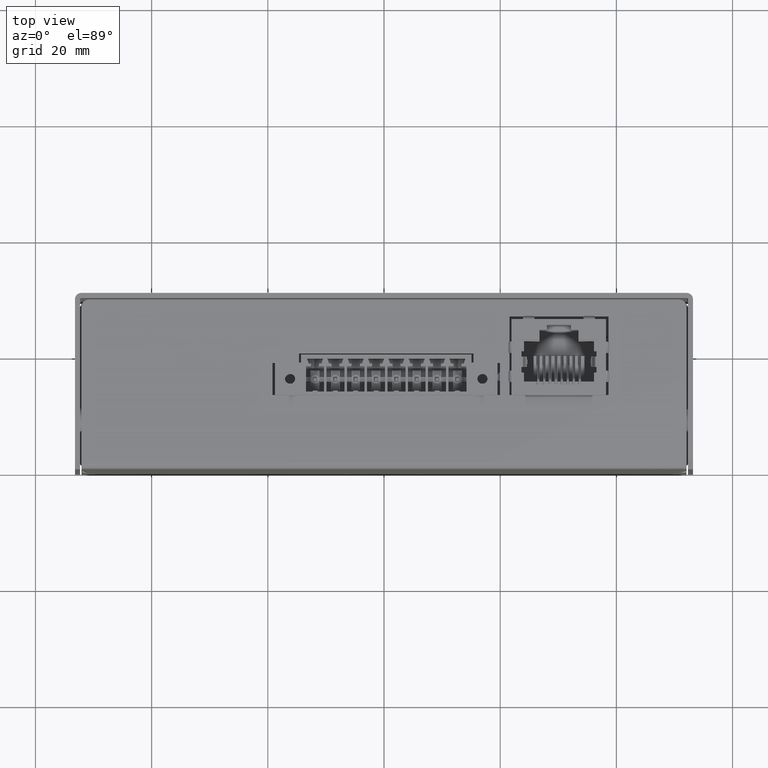
[diagram: clean part render]
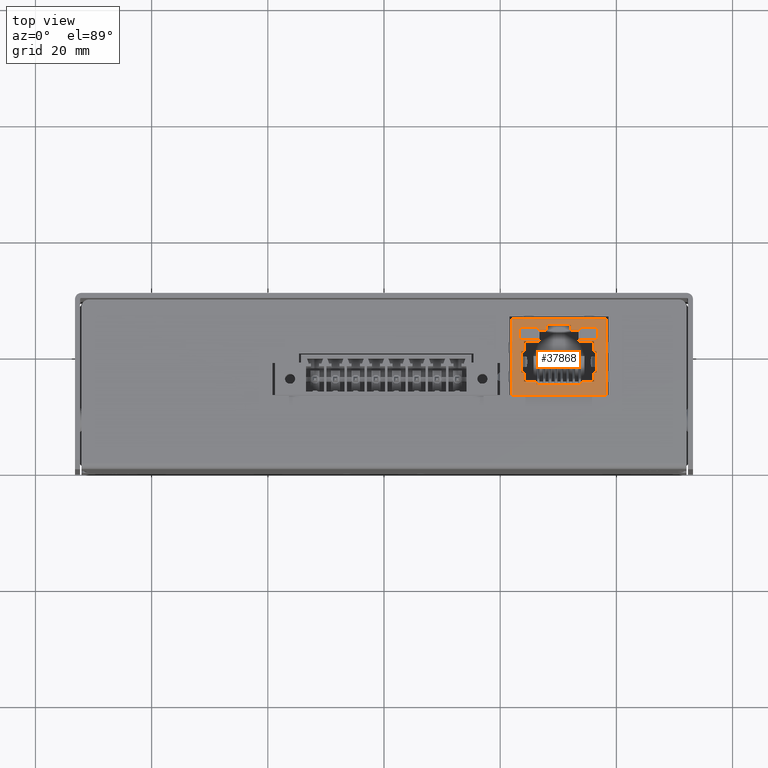
[diagram: same view with one face highlighted and labeled with its STEP entity id]
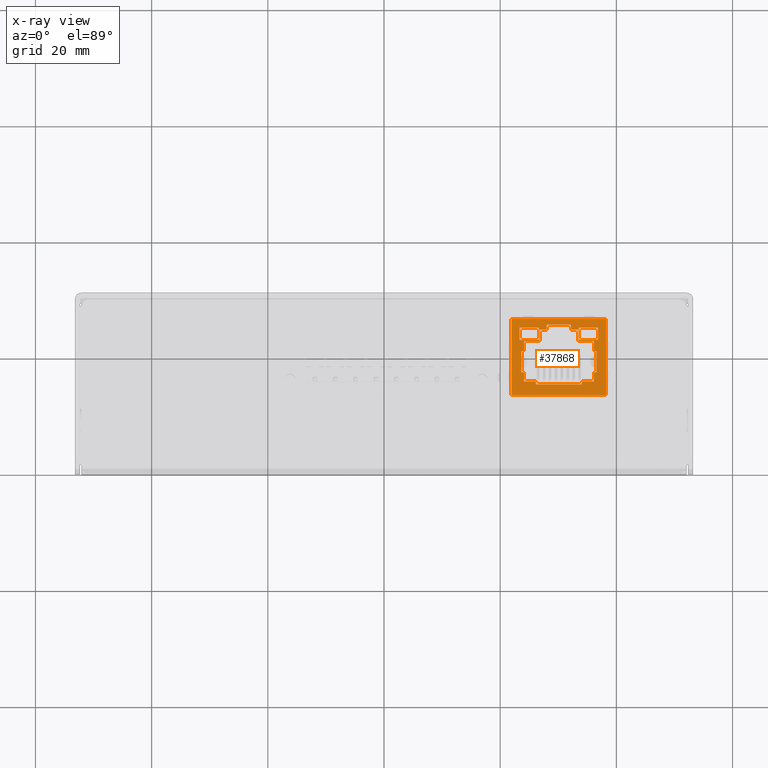
[diagram: x-ray of the same camera — body ghosted, the highlighted face saturated]
A machine part, top view. The second image highlights one B-rep face of the part: STEP entity #37868.
The next image is the same camera in x-ray: the body ghosted, the highlighted face saturated — about 0% of this face is hidden behind the body in this view.
In plain terms, the highlighted planar face has unit normal (0, 0, -1).
Its self-contained STEP definition (entity closure, byte-faithful):
#2629 = VECTOR ( 'NONE', #35158, 1000.000000000000000 ) ;
#2660 = VECTOR ( 'NONE', #35184, 1000.000000000000000 ) ;
#3118 = VECTOR ( 'NONE', #6765, 1000.000000000000000 ) ;
#3159 = VECTOR ( 'NONE', #6862, 1000.000000000000000 ) ;
#5052 = EDGE_LOOP ( 'NONE', ( #21451, #21020, #27258, #21474 ) ) ;
#5267 = EDGE_LOOP ( 'NONE', ( #31688, #31593, #31269, #31288 ) ) ;
#5320 = EDGE_LOOP ( 'NONE', ( #31165, #31755, #31402, #31813, #31379, #31927, #31931, #31934, #31210, #31201, #31162, #31204, #31208, #31900, #31197, #31582 ) ) ;
#5321 = EDGE_LOOP ( 'NONE', ( #21211, #21045, #21457, #21383, #21185, #21398, #21454, #21360, #21029, #21481, #21118, #21272, #21449, #21434, #21440, #21410, #23133, #23124, #23146, #23140, #23141, #23143, #23144, #23142, #23145, #31751, #23131, #23132, #31188, #31879, #31787, #31412 ) ) ;
#6760 = LINE ( 'NONE', #6763, #3118 ) ;
#6763 = CARTESIAN_POINT ( 'NONE',  ( -8.130000000000000800, 13.10000000000000000, 7.874999999999998200 ) ) ;
#6765 = DIRECTION ( 'NONE',  ( -0.0000000000000000000, -1.000000000000000000, -0.0000000000000000000 ) ) ;
#6859 = LINE ( 'NONE', #6861, #3159 ) ;
#6861 = CARTESIAN_POINT ( 'NONE',  ( -8.130000000000000800, 13.10000000000000000, 7.874999999999998200 ) ) ;
#6862 = DIRECTION ( 'NONE',  ( 1.000000000000000000, 0.0000000000000000000, 0.0000000000000000000 ) ) ;
#7050 = LINE ( 'NONE', #7098, #25671 ) ;
#7098 = CARTESIAN_POINT ( 'NONE',  ( 3.449999999999999700, 11.60000000000000300, 7.874999999999998200 ) ) ;
#7100 = DIRECTION ( 'NONE',  ( -1.000000000000000000, -0.0000000000000000000, -0.0000000000000000000 ) ) ;
#7601 = LINE ( 'NONE', #7603, #25349 ) ;
#7603 = CARTESIAN_POINT ( 'NONE',  ( 6.000000000000002700, 7.599999999999998800, 7.874999999999998200 ) ) ;
#7604 = DIRECTION ( 'NONE',  ( 0.0000000000000000000, 1.000000000000000000, 0.0000000000000000000 ) ) ;
#7695 = LINE ( 'NONE', #7697, #25607 ) ;
#7697 = CARTESIAN_POINT ( 'NONE',  ( 8.130000000000002600, 13.10000000000000000, 7.874999999999998200 ) ) ;
#7698 = DIRECTION ( 'NONE',  ( -0.0000000000000000000, -1.000000000000000000, -0.0000000000000000000 ) ) ;
#8303 = LINE ( 'NONE', #8306, #25576 ) ;
#8306 = CARTESIAN_POINT ( 'NONE',  ( -8.130000000000000800, 13.10000000000000000, 7.874999999999998200 ) ) ;
#8309 = DIRECTION ( 'NONE',  ( -0.0000000000000000000, -1.000000000000000000, -0.0000000000000000000 ) ) ;
#10077 = VECTOR ( 'NONE', #32862, 1000.000000000000000 ) ;
#10083 = VECTOR ( 'NONE', #32850, 1000.000000000000000 ) ;
#10108 = VECTOR ( 'NONE', #27692, 1000.000000000000000 ) ;
#10225 = VECTOR ( 'NONE', #32831, 1000.000000000000000 ) ;
#10379 = VECTOR ( 'NONE', #27689, 1000.000000000000000 ) ;
#10441 = VECTOR ( 'NONE', #27686, 1000.000000000000000 ) ;
#10454 = VECTOR ( 'NONE', #52551, 1000.000000000000000 ) ;
#10538 = VECTOR ( 'NONE', #27683, 1000.000000000000000 ) ;
#10662 = VECTOR ( 'NONE', #52556, 1000.000000000000000 ) ;
#10663 = VECTOR ( 'NONE', #27680, 1000.000000000000000 ) ;
#10688 = VECTOR ( 'NONE', #27701, 1000.000000000000000 ) ;
#10695 = VECTOR ( 'NONE', #27677, 1000.000000000000000 ) ;
#10704 = VECTOR ( 'NONE', #27824, 1000.000000000000000 ) ;
#10736 = VECTOR ( 'NONE', #52572, 1000.000000000000000 ) ;
#10741 = VECTOR ( 'NONE', #32856, 1000.000000000000000 ) ;
#10742 = VECTOR ( 'NONE', #52562, 1000.000000000000000 ) ;
#10809 = VECTOR ( 'NONE', #32837, 1000.000000000000000 ) ;
#10822 = VECTOR ( 'NONE', #27697, 1000.000000000000000 ) ;
#10852 = VECTOR ( 'NONE', #32819, 1000.000000000000000 ) ;
#10857 = VECTOR ( 'NONE', #52565, 1000.000000000000000 ) ;
#10874 = VECTOR ( 'NONE', #32844, 1000.000000000000000 ) ;
#10883 = VECTOR ( 'NONE', #27704, 1000.000000000000000 ) ;
#10903 = VECTOR ( 'NONE', #27695, 1000.000000000000000 ) ;
#10964 = VECTOR ( 'NONE', #32825, 1000.000000000000000 ) ;
#16040 = CARTESIAN_POINT ( 'NONE',  ( -6.450000000000000200, 7.599999999999997000, 7.874999999999998200 ) ) ;
#16053 = LINE ( 'NONE', #16040, #45099 ) ;
#16064 = DIRECTION ( 'NONE',  ( 2.344220913482171700E-016, -1.000000000000000000, 0.0000000000000000000 ) ) ;
#16131 = CARTESIAN_POINT ( 'NONE',  ( 8.130000000000002600, 13.10000000000000000, 7.874999999999998200 ) ) ;
#16132 = LINE ( 'NONE', #16131, #45118 ) ;
#16133 = LINE ( 'NONE', #16134, #45117 ) ;
#16134 = CARTESIAN_POINT ( 'NONE',  ( -8.130000000000000800, 13.10000000000000000, 7.874999999999998200 ) ) ;
#16135 = DIRECTION ( 'NONE',  ( 1.000000000000000000, 0.0000000000000000000, 0.0000000000000000000 ) ) ;
#16139 = DIRECTION ( 'NONE',  ( -0.0000000000000000000, -1.000000000000000000, -0.0000000000000000000 ) ) ;
#16140 = CARTESIAN_POINT ( 'NONE',  ( -3.950000000000002000, 1.850000000000000100, 7.874999999999998200 ) ) ;
#16145 = LINE ( 'NONE', #16140, #45123 ) ;
#16149 = DIRECTION ( 'NONE',  ( 1.000000000000000000, 0.0000000000000000000, 0.0000000000000000000 ) ) ;
#21020 = ORIENTED_EDGE ( 'NONE', *, *, #23230, .F. ) ;
#21029 = ORIENTED_EDGE ( 'NONE', *, *, #23223, .F. ) ;
#21045 = ORIENTED_EDGE ( 'NONE', *, *, #23226, .F. ) ;
#21118 = ORIENTED_EDGE ( 'NONE', *, *, #23221, .T. ) ;
#21185 = ORIENTED_EDGE ( 'NONE', *, *, #23224, .F. ) ;
#21211 = ORIENTED_EDGE ( 'NONE', *, *, #23229, .F. ) ;
#21272 = ORIENTED_EDGE ( 'NONE', *, *, #48383, .F. ) ;
#21360 = ORIENTED_EDGE ( 'NONE', *, *, #47999, .F. ) ;
#21383 = ORIENTED_EDGE ( 'NONE', *, *, #23227, .F. ) ;
#21398 = ORIENTED_EDGE ( 'NONE', *, *, #23225, .F. ) ;
#21410 = ORIENTED_EDGE ( 'NONE', *, *, #23217, .F. ) ;
#21434 = ORIENTED_EDGE ( 'NONE', *, *, #23219, .F. ) ;
#21440 = ORIENTED_EDGE ( 'NONE', *, *, #23216, .F. ) ;
#21449 = ORIENTED_EDGE ( 'NONE', *, *, #23218, .F. ) ;
#21451 = ORIENTED_EDGE ( 'NONE', *, *, #23261, .F. ) ;
#21454 = ORIENTED_EDGE ( 'NONE', *, *, #23222, .F. ) ;
#21457 = ORIENTED_EDGE ( 'NONE', *, *, #48405, .F. ) ;
#21474 = ORIENTED_EDGE ( 'NONE', *, *, #23228, .F. ) ;
#21481 = ORIENTED_EDGE ( 'NONE', *, *, #23220, .F. ) ;
#23124 = ORIENTED_EDGE ( 'NONE', *, *, #23215, .F. ) ;
#23131 = ORIENTED_EDGE ( 'NONE', *, *, #39966, .F. ) ;
#23132 = ORIENTED_EDGE ( 'NONE', *, *, #40061, .T. ) ;
#23133 = ORIENTED_EDGE ( 'NONE', *, *, #23214, .F. ) ;
#23140 = ORIENTED_EDGE ( 'NONE', *, *, #23514, .F. ) ;
#23141 = ORIENTED_EDGE ( 'NONE', *, *, #23511, .F. ) ;
#23142 = ORIENTED_EDGE ( 'NONE', *, *, #23926, .F. ) ;
#23143 = ORIENTED_EDGE ( 'NONE', *, *, #23512, .F. ) ;
#23144 = ORIENTED_EDGE ( 'NONE', *, *, #23510, .F. ) ;
#23145 = ORIENTED_EDGE ( 'NONE', *, *, #39951, .F. ) ;
#23146 = ORIENTED_EDGE ( 'NONE', *, *, #23513, .F. ) ;
#23214 = EDGE_CURVE ( 'NONE', #27532, #27416, #32804, .T. ) ;
#23215 = EDGE_CURVE ( 'NONE', #27386, #27532, #32816, .T. ) ;
#23216 = EDGE_CURVE ( 'NONE', #27431, #27453, #32818, .T. ) ;
#23217 = EDGE_CURVE ( 'NONE', #27416, #27431, #32808, .T. ) ;
#23218 = EDGE_CURVE ( 'NONE', #27406, #41823, #32824, .T. ) ;
#23219 = EDGE_CURVE ( 'NONE', #27453, #27406, #32830, .T. ) ;
#23220 = EDGE_CURVE ( 'NONE', #27419, #27408, #32836, .T. ) ;
#23221 = EDGE_CURVE ( 'NONE', #27419, #41821, #32843, .T. ) ;
#23222 = EDGE_CURVE ( 'NONE', #41818, #27432, #32849, .T. ) ;
#23223 = EDGE_CURVE ( 'NONE', #27408, #41822, #32855, .T. ) ;
#23224 = EDGE_CURVE ( 'NONE', #27412, #27410, #32861, .T. ) ;
#23225 = EDGE_CURVE ( 'NONE', #27432, #27412, #27676, .T. ) ;
#23226 = EDGE_CURVE ( 'NONE', #27566, #27376, #27679, .T. ) ;
#23227 = EDGE_CURVE ( 'NONE', #27410, #27559, #27682, .T. ) ;
#23228 = EDGE_CURVE ( 'NONE', #27374, #27423, #27685, .T. ) ;
#23229 = EDGE_CURVE ( 'NONE', #27376, #27535, #27688, .T. ) ;
#23230 = EDGE_CURVE ( 'NONE', #27379, #42384, #27698, .T. ) ;
#23231 = EDGE_CURVE ( 'NONE', #27423, #27379, #27691, .T. ) ;
#23261 = EDGE_CURVE ( 'NONE', #42384, #27374, #27812, .T. ) ;
#23510 = EDGE_CURVE ( 'NONE', #27455, #27463, #52548, .T. ) ;
#23511 = EDGE_CURVE ( 'NONE', #27518, #27396, #52540, .T. ) ;
#23512 = EDGE_CURVE ( 'NONE', #27463, #27518, #52536, .T. ) ;
#23513 = EDGE_CURVE ( 'NONE', #27531, #27386, #52549, .T. ) ;
#23514 = EDGE_CURVE ( 'NONE', #27396, #27531, #52567, .T. ) ;
#23843 = EDGE_CURVE ( 'NONE', #27465, #27530, #7050, .T. ) ;
#23926 = EDGE_CURVE ( 'NONE', #27390, #27455, #7601, .T. ) ;
#23936 = EDGE_CURVE ( 'NONE', #42229, #42239, #7695, .T. ) ;
#23984 = EDGE_CURVE ( 'NONE', #27576, #41838, #8303, .T. ) ;
#24033 = EDGE_CURVE ( 'NONE', #27530, #27388, #38512, .T. ) ;
#25349 = VECTOR ( 'NONE', #7604, 1000.000000000000000 ) ;
#25576 = VECTOR ( 'NONE', #8309, 1000.000000000000000 ) ;
#25607 = VECTOR ( 'NONE', #7698, 1000.000000000000000 ) ;
#25671 = VECTOR ( 'NONE', #7100, 1000.000000000000000 ) ;
#26001 = VECTOR ( 'NONE', #38520, 1000.000000000000000 ) ;
#27258 = ORIENTED_EDGE ( 'NONE', *, *, #23231, .F. ) ;
#27372 = VERTEX_POINT ( 'NONE', #38543 ) ;
#27374 = VERTEX_POINT ( 'NONE', #38565 ) ;
#27376 = VERTEX_POINT ( 'NONE', #38553 ) ;
#27379 = VERTEX_POINT ( 'NONE', #38571 ) ;
#27382 = VERTEX_POINT ( 'NONE', #38574 ) ;
#27386 = VERTEX_POINT ( 'NONE', #38582 ) ;
#27388 = VERTEX_POINT ( 'NONE', #38586 ) ;
#27390 = VERTEX_POINT ( 'NONE', #38590 ) ;
#27392 = VERTEX_POINT ( 'NONE', #38592 ) ;
#27394 = VERTEX_POINT ( 'NONE', #38596 ) ;
#27396 = VERTEX_POINT ( 'NONE', #38600 ) ;
#27398 = VERTEX_POINT ( 'NONE', #38604 ) ;
#27406 = VERTEX_POINT ( 'NONE', #38618 ) ;
#27408 = VERTEX_POINT ( 'NONE', #38621 ) ;
#27410 = VERTEX_POINT ( 'NONE', #38625 ) ;
#27412 = VERTEX_POINT ( 'NONE', #38628 ) ;
#27416 = VERTEX_POINT ( 'NONE', #38636 ) ;
#27419 = VERTEX_POINT ( 'NONE', #38641 ) ;
#27423 = VERTEX_POINT ( 'NONE', #38648 ) ;
#27431 = VERTEX_POINT ( 'NONE', #38659 ) ;
#27432 = VERTEX_POINT ( 'NONE', #38660 ) ;
#27451 = VERTEX_POINT ( 'NONE', #38693 ) ;
#27453 = VERTEX_POINT ( 'NONE', #38696 ) ;
#27455 = VERTEX_POINT ( 'NONE', #38698 ) ;
#27461 = VERTEX_POINT ( 'NONE', #38707 ) ;
#27463 = VERTEX_POINT ( 'NONE', #38711 ) ;
#27465 = VERTEX_POINT ( 'NONE', #38715 ) ;
#27518 = VERTEX_POINT ( 'NONE', #38804 ) ;
#27530 = VERTEX_POINT ( 'NONE', #38823 ) ;
#27531 = VERTEX_POINT ( 'NONE', #38824 ) ;
#27532 = VERTEX_POINT ( 'NONE', #38825 ) ;
#27535 = VERTEX_POINT ( 'NONE', #38828 ) ;
#27541 = VERTEX_POINT ( 'NONE', #38838 ) ;
#27549 = VERTEX_POINT ( 'NONE', #38853 ) ;
#27559 = VERTEX_POINT ( 'NONE', #38869 ) ;
#27561 = VERTEX_POINT ( 'NONE', #38872 ) ;
#27562 = VERTEX_POINT ( 'NONE', #38874 ) ;
#27566 = VERTEX_POINT ( 'NONE', #38881 ) ;
#27576 = VERTEX_POINT ( 'NONE', #38898 ) ;
#27597 = VERTEX_POINT ( 'NONE', #38931 ) ;
#27676 = LINE ( 'NONE', #27684, #10441 ) ;
#27677 = DIRECTION ( 'NONE',  ( 1.000000000000000000, 3.854941057726261600E-015, 0.0000000000000000000 ) ) ;
#27678 = CARTESIAN_POINT ( 'NONE',  ( -6.439999999999999500, 4.849999999999999600, 7.874999574450241000 ) ) ;
#27679 = LINE ( 'NONE', #27687, #10379 ) ;
#27680 = DIRECTION ( 'NONE',  ( -1.000000000000000000, -0.0000000000000000000, -0.0000000000000000000 ) ) ;
#27681 = CARTESIAN_POINT ( 'NONE',  ( -6.000000000000000900, 2.350000000000000100, 7.874999999999998200 ) ) ;
#27682 = LINE ( 'NONE', #27690, #10108 ) ;
#27683 = DIRECTION ( 'NONE',  ( 1.000000000000000000, 1.084202172485503900E-016, 0.0000000000000000000 ) ) ;
#27684 = CARTESIAN_POINT ( 'NONE',  ( -6.000000000000001800, 3.899999999999999000, 7.874999999999998200 ) ) ;
#27685 = LINE ( 'NONE', #27693, #10903 ) ;
#27686 = DIRECTION ( 'NONE',  ( 5.595882180570350100E-016, -1.000000000000000000, 0.0000000000000000000 ) ) ;
#27687 = CARTESIAN_POINT ( 'NONE',  ( 3.949999999999998800, 1.850000000000000100, 7.874999999999998200 ) ) ;
#27688 = LINE ( 'NONE', #27696, #10822 ) ;
#27689 = DIRECTION ( 'NONE',  ( 0.0000000000000000000, 1.000000000000000000, 0.0000000000000000000 ) ) ;
#27690 = CARTESIAN_POINT ( 'NONE',  ( -3.950000000000002000, 1.850000000000000100, 7.874999999999998200 ) ) ;
#27691 = LINE ( 'NONE', #27702, #10883 ) ;
#27692 = DIRECTION ( 'NONE',  ( -0.0000000000000000000, -1.000000000000000000, -0.0000000000000000000 ) ) ;
#27693 = CARTESIAN_POINT ( 'NONE',  ( -6.749999999999999100, 11.60000000000000000, 7.874999999999998200 ) ) ;
#27695 = DIRECTION ( 'NONE',  ( -1.000000000000000000, -5.256737805990325000E-016, -0.0000000000000000000 ) ) ;
#27696 = CARTESIAN_POINT ( 'NONE',  ( -6.000000000000000900, 2.350000000000000100, 7.874999999999998200 ) ) ;
#27697 = DIRECTION ( 'NONE',  ( 1.000000000000000000, 1.084202172485503900E-016, 0.0000000000000000000 ) ) ;
#27698 = LINE ( 'NONE', #27700, #10688 ) ;
#27700 = CARTESIAN_POINT ( 'NONE',  ( -6.749999999999999100, 9.499999999999998200, 7.874999999999998200 ) ) ;
#27701 = DIRECTION ( 'NONE',  ( 1.000000000000000000, 0.0000000000000000000, 0.0000000000000000000 ) ) ;
#27702 = CARTESIAN_POINT ( 'NONE',  ( -6.749999999999999100, 9.499999999999998200, 7.874999999999998200 ) ) ;
#27704 = DIRECTION ( 'NONE',  ( -0.0000000000000000000, -1.000000000000000000, -0.0000000000000000000 ) ) ;
#27812 = LINE ( 'NONE', #27822, #10704 ) ;
#27822 = CARTESIAN_POINT ( 'NONE',  ( -3.449999999999999300, 9.499999999999998200, 7.874999999999998200 ) ) ;
#27824 = DIRECTION ( 'NONE',  ( 0.0000000000000000000, 1.000000000000000000, 0.0000000000000000000 ) ) ;
#31162 = ORIENTED_EDGE ( 'NONE', *, *, #48714, .F. ) ;
#31165 = ORIENTED_EDGE ( 'NONE', *, *, #48006, .T. ) ;
#31188 = ORIENTED_EDGE ( 'NONE', *, *, #40068, .T. ) ;
#31197 = ORIENTED_EDGE ( 'NONE', *, *, #40376, .F. ) ;
#31201 = ORIENTED_EDGE ( 'NONE', *, *, #40278, .F. ) ;
#31204 = ORIENTED_EDGE ( 'NONE', *, *, #48698, .T. ) ;
#31208 = ORIENTED_EDGE ( 'NONE', *, *, #40205, .F. ) ;
#31210 = ORIENTED_EDGE ( 'NONE', *, *, #48400, .F. ) ;
#31269 = ORIENTED_EDGE ( 'NONE', *, *, #24033, .F. ) ;
#31288 = ORIENTED_EDGE ( 'NONE', *, *, #23843, .F. ) ;
#31379 = ORIENTED_EDGE ( 'NONE', *, *, #40167, .T. ) ;
#31402 = ORIENTED_EDGE ( 'NONE', *, *, #40117, .T. ) ;
#31412 = ORIENTED_EDGE ( 'NONE', *, *, #40396, .F. ) ;
#31582 = ORIENTED_EDGE ( 'NONE', *, *, #23984, .T. ) ;
#31593 = ORIENTED_EDGE ( 'NONE', *, *, #39953, .F. ) ;
#31688 = ORIENTED_EDGE ( 'NONE', *, *, #40276, .F. ) ;
#31751 = ORIENTED_EDGE ( 'NONE', *, *, #40071, .F. ) ;
#31755 = ORIENTED_EDGE ( 'NONE', *, *, #48402, .F. ) ;
#31787 = ORIENTED_EDGE ( 'NONE', *, *, #40058, .F. ) ;
#31813 = ORIENTED_EDGE ( 'NONE', *, *, #23936, .F. ) ;
#31879 = ORIENTED_EDGE ( 'NONE', *, *, #40091, .F. ) ;
#31900 = ORIENTED_EDGE ( 'NONE', *, *, #48499, .T. ) ;
#31927 = ORIENTED_EDGE ( 'NONE', *, *, #48491, .F. ) ;
#31931 = ORIENTED_EDGE ( 'NONE', *, *, #40280, .F. ) ;
#31934 = ORIENTED_EDGE ( 'NONE', *, *, #40127, .F. ) ;
#32804 = LINE ( 'NONE', #32814, #10852 ) ;
#32808 = LINE ( 'NONE', #32833, #10809 ) ;
#32814 = CARTESIAN_POINT ( 'NONE',  ( -2.075000000000000200, 11.22999999999999700, 7.874999999999998200 ) ) ;
#32816 = LINE ( 'NONE', #32821, #10964 ) ;
#32818 = LINE ( 'NONE', #32827, #10225 ) ;
#32819 = DIRECTION ( 'NONE',  ( -1.000000000000000000, 0.0000000000000000000, 0.0000000000000000000 ) ) ;
#32821 = CARTESIAN_POINT ( 'NONE',  ( -2.075000000000000200, 12.10000000000000000, 7.874999999999998200 ) ) ;
#32824 = LINE ( 'NONE', #32839, #10874 ) ;
#32825 = DIRECTION ( 'NONE',  ( 0.0000000000000000000, -1.000000000000000000, 0.0000000000000000000 ) ) ;
#32827 = CARTESIAN_POINT ( 'NONE',  ( -3.349999999999999200, 9.299999999999998900, 7.874999999999998200 ) ) ;
#32830 = LINE ( 'NONE', #32846, #10083 ) ;
#32831 = DIRECTION ( 'NONE',  ( -1.000000000000000000, -1.309225264888155500E-015, 0.0000000000000000000 ) ) ;
#32833 = CARTESIAN_POINT ( 'NONE',  ( -3.349999999999999600, 11.22999999999999700, 7.874999999999998200 ) ) ;
#32836 = LINE ( 'NONE', #32852, #10741 ) ;
#32837 = DIRECTION ( 'NONE',  ( 2.247051134684986300E-016, -1.000000000000000000, 0.0000000000000000000 ) ) ;
#32839 = CARTESIAN_POINT ( 'NONE',  ( -6.000000000000000900, 7.599999999999997000, 7.874999999999998200 ) ) ;
#32843 = LINE ( 'NONE', #32858, #10077 ) ;
#32844 = DIRECTION ( 'NONE',  ( -1.000000000000000000, 0.0000000000000000000, 0.0000000000000000000 ) ) ;
#32846 = CARTESIAN_POINT ( 'NONE',  ( -6.000000000000000900, 9.299999999999995400, 7.874999999999998200 ) ) ;
#32849 = LINE ( 'NONE', #32864, #10695 ) ;
#32850 = DIRECTION ( 'NONE',  ( 0.0000000000000000000, -1.000000000000000000, 0.0000000000000000000 ) ) ;
#32852 = CARTESIAN_POINT ( 'NONE',  ( -6.439999999999999500, 4.849999999999999600, 7.874999574450241000 ) ) ;
#32855 = LINE ( 'NONE', #27678, #10663 ) ;
#32856 = DIRECTION ( 'NONE',  ( 4.818676322157796400E-016, -1.000000000000000000, -0.0000000000000000000 ) ) ;
#32858 = CARTESIAN_POINT ( 'NONE',  ( -6.440000000000000400, 6.649999999999999500, 7.874999574450241000 ) ) ;
#32861 = LINE ( 'NONE', #27681, #10538 ) ;
#32862 = DIRECTION ( 'NONE',  ( -1.000000000000000000, -0.0000000000000000000, -0.0000000000000000000 ) ) ;
#32864 = CARTESIAN_POINT ( 'NONE',  ( -6.449999999999999300, 3.899999999999997200, 7.874999999999998200 ) ) ;
#35133 = CARTESIAN_POINT ( 'NONE',  ( 8.130000000000002600, 13.10000000000000000, 7.874999999999998200 ) ) ;
#35134 = LINE ( 'NONE', #35133, #2629 ) ;
#35158 = DIRECTION ( 'NONE',  ( -0.0000000000000000000, -1.000000000000000000, -0.0000000000000000000 ) ) ;
#35182 = LINE ( 'NONE', #35183, #2660 ) ;
#35183 = CARTESIAN_POINT ( 'NONE',  ( -8.130000000000000800, 13.10000000000000000, 7.874999999999998200 ) ) ;
#35184 = DIRECTION ( 'NONE',  ( -0.0000000000000000000, -1.000000000000000000, -0.0000000000000000000 ) ) ;
#36445 = PLANE ( 'NONE',  #44499 ) ;
#36446 = FACE_BOUND ( 'NONE', #5052, .T. ) ;
#36448 = FACE_BOUND ( 'NONE', #5321, .T. ) ;
#36450 = FACE_OUTER_BOUND ( 'NONE', #5320, .T. ) ;
#36452 = FACE_BOUND ( 'NONE', #5267, .T. ) ;
#36460 = CARTESIAN_POINT ( 'NONE',  ( -8.130000000000000800, 13.10000000000000000, 7.874999999999998200 ) ) ;
#36461 = DIRECTION ( 'NONE',  ( 0.0000000000000000000, 0.0000000000000000000, -1.000000000000000000 ) ) ;
#36462 = DIRECTION ( 'NONE',  ( -1.000000000000000000, 0.0000000000000000000, -0.0000000000000000000 ) ) ;
#36611 = CARTESIAN_POINT ( 'NONE',  ( 6.450000000000002000, 7.599999999999998800, 7.874999999999998200 ) ) ;
#36612 = LINE ( 'NONE', #36611, #44571 ) ;
#36613 = DIRECTION ( 'NONE',  ( -1.000000000000000000, 0.0000000000000000000, 0.0000000000000000000 ) ) ;
#36620 = LINE ( 'NONE', #36621, #44570 ) ;
#36621 = CARTESIAN_POINT ( 'NONE',  ( 3.449999999999999700, 9.500000000000001800, 7.874999999999998200 ) ) ;
#36622 = DIRECTION ( 'NONE',  ( 1.000000000000000000, 0.0000000000000000000, 0.0000000000000000000 ) ) ;
#36654 = CARTESIAN_POINT ( 'NONE',  ( 6.440000000000000400, 6.649999999999999500, 7.874999574450241000 ) ) ;
#36655 = LINE ( 'NONE', #36654, #44582 ) ;
#36661 = DIRECTION ( 'NONE',  ( 1.000000000000000000, -0.0000000000000000000, -0.0000000000000000000 ) ) ;
#36664 = LINE ( 'NONE', #36674, #44586 ) ;
#36674 = CARTESIAN_POINT ( 'NONE',  ( 6.000000000000000000, 3.899999999999999000, 7.874999999999998200 ) ) ;
#36675 = DIRECTION ( 'NONE',  ( 1.000000000000000000, 0.0000000000000000000, 0.0000000000000000000 ) ) ;
#36676 = LINE ( 'NONE', #36677, #44589 ) ;
#36677 = CARTESIAN_POINT ( 'NONE',  ( 6.439999999999999500, 4.849999999999999600, 7.874999574450241000 ) ) ;
#36678 = DIRECTION ( 'NONE',  ( -4.818676322157796400E-016, -1.000000000000000000, 0.0000000000000000000 ) ) ;
#36679 = LINE ( 'NONE', #36680, #44590 ) ;
#36680 = CARTESIAN_POINT ( 'NONE',  ( 6.439999999999999500, 4.849999999999999600, 7.874999574450241000 ) ) ;
#36681 = DIRECTION ( 'NONE',  ( 1.000000000000000000, -0.0000000000000000000, -0.0000000000000000000 ) ) ;
#36682 = LINE ( 'NONE', #36683, #44591 ) ;
#36683 = CARTESIAN_POINT ( 'NONE',  ( 6.450000000000001100, 3.899999999999999000, 7.874999999999998200 ) ) ;
#36684 = DIRECTION ( 'NONE',  ( 2.344220913482171700E-016, 1.000000000000000000, 0.0000000000000000000 ) ) ;
#36689 = LINE ( 'NONE', #36709, #44593 ) ;
#36694 = LINE ( 'NONE', #36695, #44595 ) ;
#36695 = CARTESIAN_POINT ( 'NONE',  ( 6.450000000000001100, 3.899999999999999000, 7.874999999999998200 ) ) ;
#36696 = DIRECTION ( 'NONE',  ( 2.344220913482171700E-016, 1.000000000000000000, 0.0000000000000000000 ) ) ;
#36697 = LINE ( 'NONE', #36698, #44596 ) ;
#36698 = CARTESIAN_POINT ( 'NONE',  ( 8.130000000000000800, 4.200000000000005500, 7.874999999999998200 ) ) ;
#36699 = DIRECTION ( 'NONE',  ( 0.0000000000000000000, 1.000000000000000000, 0.0000000000000000000 ) ) ;
#36700 = LINE ( 'NONE', #36701, #44597 ) ;
#36701 = CARTESIAN_POINT ( 'NONE',  ( 4.200000000000008200, 13.10000000000000000, 7.874999999999998200 ) ) ;
#36702 = DIRECTION ( 'NONE',  ( 1.000000000000000000, 0.0000000000000000000, 0.0000000000000000000 ) ) ;
#36703 = LINE ( 'NONE', #36704, #44598 ) ;
#36704 = CARTESIAN_POINT ( 'NONE',  ( 8.130000000000000800, 9.200000000000006400, 7.874999999999998200 ) ) ;
#36705 = DIRECTION ( 'NONE',  ( 0.0000000000000000000, 1.000000000000000000, 0.0000000000000000000 ) ) ;
#36706 = LINE ( 'NONE', #36707, #44599 ) ;
#36707 = CARTESIAN_POINT ( 'NONE',  ( -8.130000000000000800, 9.200000000000006400, 7.874999999999998200 ) ) ;
#36708 = DIRECTION ( 'NONE',  ( 0.0000000000000000000, 1.000000000000000000, -0.0000000000000000000 ) ) ;
#36709 = CARTESIAN_POINT ( 'NONE',  ( 6.750000000000000000, 9.500000000000001800, 7.874999999999998200 ) ) ;
#36710 = DIRECTION ( 'NONE',  ( 0.0000000000000000000, 1.000000000000000000, 0.0000000000000000000 ) ) ;
#36714 = LINE ( 'NONE', #36715, #44602 ) ;
#36715 = CARTESIAN_POINT ( 'NONE',  ( -6.199999999999991300, 13.10000000000000000, 7.874999999999998200 ) ) ;
#36716 = DIRECTION ( 'NONE',  ( 1.000000000000000000, 0.0000000000000000000, 0.0000000000000000000 ) ) ;
#36717 = LINE ( 'NONE', #36718, #44603 ) ;
#36718 = CARTESIAN_POINT ( 'NONE',  ( -8.130000000000000800, 13.10000000000000000, 7.874999999999998200 ) ) ;
#36719 = DIRECTION ( 'NONE',  ( 1.000000000000000000, 0.0000000000000000000, 0.0000000000000000000 ) ) ;
#36732 = LINE ( 'NONE', #36733, #44606 ) ;
#36733 = CARTESIAN_POINT ( 'NONE',  ( -8.130000000000000800, 4.200000000000005500, 7.874999999999998200 ) ) ;
#36734 = DIRECTION ( 'NONE',  ( 0.0000000000000000000, 1.000000000000000000, -0.0000000000000000000 ) ) ;
#36735 = LINE ( 'NONE', #36736, #44607 ) ;
#36736 = CARTESIAN_POINT ( 'NONE',  ( 6.000000000000004400, 2.350000000000001400, 7.874999999999998200 ) ) ;
#36737 = DIRECTION ( 'NONE',  ( -2.797941090285176800E-015, 1.000000000000000000, 0.0000000000000000000 ) ) ;
#37868 = ADVANCED_FACE ( 'NONE', ( #36446, #36448, #36450, #36452 ), #36445, .F. ) ;
#38504 = CARTESIAN_POINT ( 'NONE',  ( 3.449999999999999700, 9.500000000000001800, 7.874999999999998200 ) ) ;
#38512 = LINE ( 'NONE', #38504, #26001 ) ;
#38520 = DIRECTION ( 'NONE',  ( -0.0000000000000000000, -1.000000000000000000, -0.0000000000000000000 ) ) ;
#38543 = CARTESIAN_POINT ( 'NONE',  ( 6.450000000000001100, 3.899999999999999000, 7.874999999999998200 ) ) ;
#38553 = CARTESIAN_POINT ( 'NONE',  ( 3.949999999999998800, 2.350000000000000100, 7.874999999999998200 ) ) ;
#38565 = CARTESIAN_POINT ( 'NONE',  ( -3.449999999999998400, 11.60000000000000100, 7.874999999999998200 ) ) ;
#38571 = CARTESIAN_POINT ( 'NONE',  ( -6.749999999999999100, 9.499999999999998200, 7.874999999999998200 ) ) ;
#38574 = CARTESIAN_POINT ( 'NONE',  ( 6.450000000000000200, 6.649999999999999500, 7.874999574450241000 ) ) ;
#38582 = CARTESIAN_POINT ( 'NONE',  ( -2.075000000000000200, 12.10000000000000000, 7.874999999999998200 ) ) ;
#38586 = CARTESIAN_POINT ( 'NONE',  ( 3.449999999999999700, 9.500000000000001800, 7.874999999999998200 ) ) ;
#38590 = CARTESIAN_POINT ( 'NONE',  ( 6.000000000000002700, 7.599999999999998800, 7.874999999999998200 ) ) ;
#38592 = CARTESIAN_POINT ( 'NONE',  ( 6.450000000000002000, 7.599999999999998800, 7.874999999999998200 ) ) ;
#38596 = CARTESIAN_POINT ( 'NONE',  ( 6.440000000000000400, 6.649999999999999500, 7.874999574450241000 ) ) ;
#38600 = CARTESIAN_POINT ( 'NONE',  ( 2.075000000000001100, 11.22999999999999700, 7.874999999999998200 ) ) ;
#38604 = CARTESIAN_POINT ( 'NONE',  ( 6.439999999999999500, 4.849999999999999600, 7.874999574450241000 ) ) ;
#38618 = CARTESIAN_POINT ( 'NONE',  ( -6.000000000000000900, 7.599999999999997000, 7.874999999999998200 ) ) ;
#38621 = CARTESIAN_POINT ( 'NONE',  ( -6.439999999999999500, 4.849999999999999600, 7.874999574450241000 ) ) ;
#38625 = CARTESIAN_POINT ( 'NONE',  ( -3.950000000000002000, 2.350000000000000100, 7.874999999999998200 ) ) ;
#38628 = CARTESIAN_POINT ( 'NONE',  ( -6.000000000000000900, 2.350000000000000100, 7.874999999999998200 ) ) ;
#38636 = CARTESIAN_POINT ( 'NONE',  ( -3.349999999999999600, 11.22999999999999700, 7.874999999999998200 ) ) ;
#38641 = CARTESIAN_POINT ( 'NONE',  ( -6.440000000000000400, 6.649999999999999500, 7.874999574450241000 ) ) ;
#38648 = CARTESIAN_POINT ( 'NONE',  ( -6.749999999999999100, 11.60000000000000000, 7.874999999999998200 ) ) ;
#38659 = CARTESIAN_POINT ( 'NONE',  ( -3.349999999999999200, 9.299999999999998900, 7.874999999999998200 ) ) ;
#38660 = CARTESIAN_POINT ( 'NONE',  ( -6.000000000000001800, 3.899999999999999000, 7.874999999999998200 ) ) ;
#38693 = CARTESIAN_POINT ( 'NONE',  ( 6.000000000000000000, 3.899999999999999000, 7.874999999999998200 ) ) ;
#38696 = CARTESIAN_POINT ( 'NONE',  ( -6.000000000000000900, 9.299999999999995400, 7.874999999999998200 ) ) ;
#38698 = CARTESIAN_POINT ( 'NONE',  ( 6.000000000000002700, 9.299999999999997200, 7.874999999999998200 ) ) ;
#38707 = CARTESIAN_POINT ( 'NONE',  ( 6.750000000000000000, 9.500000000000001800, 7.874999999999998200 ) ) ;
#38711 = CARTESIAN_POINT ( 'NONE',  ( 3.350000000000000100, 9.299999999999998900, 7.874999999999998200 ) ) ;
#38715 = CARTESIAN_POINT ( 'NONE',  ( 6.749999999999999100, 11.60000000000000300, 7.874999999999998200 ) ) ;
#38804 = CARTESIAN_POINT ( 'NONE',  ( 3.350000000000000500, 11.22999999999999700, 7.874999999999998200 ) ) ;
#38823 = CARTESIAN_POINT ( 'NONE',  ( 3.449999999999999700, 11.60000000000000300, 7.874999999999998200 ) ) ;
#38824 = CARTESIAN_POINT ( 'NONE',  ( 2.075000000000000200, 12.10000000000000000, 7.874999999999998200 ) ) ;
#38825 = CARTESIAN_POINT ( 'NONE',  ( -2.075000000000000200, 11.22999999999999700, 7.874999999999998200 ) ) ;
#38828 = CARTESIAN_POINT ( 'NONE',  ( 6.000000000000004400, 2.350000000000001400, 7.874999999999998200 ) ) ;
#38838 = CARTESIAN_POINT ( 'NONE',  ( 6.449999999999999300, 4.849999999999999600, 7.874999574450241000 ) ) ;
#38853 = CARTESIAN_POINT ( 'NONE',  ( 4.200000000000007300, 13.10237496957928900, 7.874998957837450900 ) ) ;
#38869 = CARTESIAN_POINT ( 'NONE',  ( -3.950000000000002000, 1.850000000000000100, 7.874999999999998200 ) ) ;
#38872 = CARTESIAN_POINT ( 'NONE',  ( -4.199999999999991300, 13.10237496957928900, 7.874998957837452600 ) ) ;
#38874 = CARTESIAN_POINT ( 'NONE',  ( -6.199999999999992200, 13.10237496957928900, 7.874998957837450900 ) ) ;
#38881 = CARTESIAN_POINT ( 'NONE',  ( 3.949999999999998800, 1.850000000000000100, 7.874999999999998200 ) ) ;
#38898 = CARTESIAN_POINT ( 'NONE',  ( -8.132374969579373700, 2.200000000000006000, 7.874998957837355800 ) ) ;
#38931 = CARTESIAN_POINT ( 'NONE',  ( 6.200000000000008200, 13.10237496957928900, 7.874998957837452600 ) ) ;
#39951 = EDGE_CURVE ( 'NONE', #27392, #27390, #36612, .T. ) ;
#39953 = EDGE_CURVE ( 'NONE', #27388, #27461, #36620, .T. ) ;
#39966 = EDGE_CURVE ( 'NONE', #27394, #27382, #36655, .T. ) ;
#40058 = EDGE_CURVE ( 'NONE', #27451, #27372, #36664, .T. ) ;
#40061 = EDGE_CURVE ( 'NONE', #27394, #27398, #36676, .T. ) ;
#40068 = EDGE_CURVE ( 'NONE', #27398, #27541, #36679, .T. ) ;
#40071 = EDGE_CURVE ( 'NONE', #27382, #27392, #36682, .T. ) ;
#40091 = EDGE_CURVE ( 'NONE', #27372, #27541, #36694, .T. ) ;
#40117 = EDGE_CURVE ( 'NONE', #42197, #42239, #36697, .T. ) ;
#40127 = EDGE_CURVE ( 'NONE', #27549, #27597, #36700, .T. ) ;
#40167 = EDGE_CURVE ( 'NONE', #42229, #42219, #36703, .T. ) ;
#40205 = EDGE_CURVE ( 'NONE', #41830, #41820, #36706, .T. ) ;
#40276 = EDGE_CURVE ( 'NONE', #27461, #27465, #36689, .T. ) ;
#40278 = EDGE_CURVE ( 'NONE', #27562, #27561, #36714, .T. ) ;
#40280 = EDGE_CURVE ( 'NONE', #27597, #42241, #36717, .T. ) ;
#40376 = EDGE_CURVE ( 'NONE', #27576, #42739, #36732, .T. ) ;
#40396 = EDGE_CURVE ( 'NONE', #27535, #27451, #36735, .T. ) ;
#41800 = VERTEX_POINT ( 'NONE', #43095 ) ;
#41818 = VERTEX_POINT ( 'NONE', #43106 ) ;
#41820 = VERTEX_POINT ( 'NONE', #43108 ) ;
#41821 = VERTEX_POINT ( 'NONE', #43109 ) ;
#41822 = VERTEX_POINT ( 'NONE', #43110 ) ;
#41823 = VERTEX_POINT ( 'NONE', #43111 ) ;
#41830 = VERTEX_POINT ( 'NONE', #43118 ) ;
#41838 = VERTEX_POINT ( 'NONE', #43126 ) ;
#42197 = VERTEX_POINT ( 'NONE', #43366 ) ;
#42219 = VERTEX_POINT ( 'NONE', #43388 ) ;
#42229 = VERTEX_POINT ( 'NONE', #43398 ) ;
#42239 = VERTEX_POINT ( 'NONE', #43408 ) ;
#42241 = VERTEX_POINT ( 'NONE', #43410 ) ;
#42384 = VERTEX_POINT ( 'NONE', #43552 ) ;
#42739 = VERTEX_POINT ( 'NONE', #43819 ) ;
#42956 = VERTEX_POINT ( 'NONE', #43951 ) ;
#43095 = CARTESIAN_POINT ( 'NONE',  ( 8.130000000000002600, 0.0000000000000000000, 7.874999999999998200 ) ) ;
#43106 = CARTESIAN_POINT ( 'NONE',  ( -6.449999999999999300, 3.899999999999997200, 7.874999999999998200 ) ) ;
#43108 = CARTESIAN_POINT ( 'NONE',  ( -8.132500000000066000, 9.200000000000006400, 7.874999999999881900 ) ) ;
#43109 = CARTESIAN_POINT ( 'NONE',  ( -6.450000000000000200, 6.649999999999999500, 7.874999574450241000 ) ) ;
#43110 = CARTESIAN_POINT ( 'NONE',  ( -6.449999999999999300, 4.849999999999999600, 7.874999999999998200 ) ) ;
#43111 = CARTESIAN_POINT ( 'NONE',  ( -6.450000000000000200, 7.599999999999997000, 7.874999999999998200 ) ) ;
#43118 = CARTESIAN_POINT ( 'NONE',  ( -8.132374969579373700, 7.200000000000004600, 7.874998957837355800 ) ) ;
#43126 = CARTESIAN_POINT ( 'NONE',  ( -8.130000000000000800, 0.0000000000000000000, 7.874999999999998200 ) ) ;
#43366 = CARTESIAN_POINT ( 'NONE',  ( 8.131187484789688100, 2.200000000000006000, 7.874999478918676100 ) ) ;
#43388 = CARTESIAN_POINT ( 'NONE',  ( 8.131250000000033400, 9.200000000000006400, 7.874999999999941400 ) ) ;
#43398 = CARTESIAN_POINT ( 'NONE',  ( 8.131187484789688100, 7.200000000000004600, 7.874999478918676100 ) ) ;
#43408 = CARTESIAN_POINT ( 'NONE',  ( 8.131250000000033400, 4.200000000000005500, 7.874999999999941400 ) ) ;
#43410 = CARTESIAN_POINT ( 'NONE',  ( 8.130000000000002600, 13.10000000000000000, 7.874999999999998200 ) ) ;
#43552 = CARTESIAN_POINT ( 'NONE',  ( -3.449999999999999300, 9.499999999999998200, 7.874999999999998200 ) ) ;
#43819 = CARTESIAN_POINT ( 'NONE',  ( -8.132500000000066000, 4.200000000000005500, 7.874999999999881900 ) ) ;
#43951 = CARTESIAN_POINT ( 'NONE',  ( -8.130000000000000800, 13.10000000000000000, 7.874999999999998200 ) ) ;
#44120 = LINE ( 'NONE', #44122, #44633 ) ;
#44122 = CARTESIAN_POINT ( 'NONE',  ( -6.450000000000000200, 7.599999999999997000, 7.874999999999998200 ) ) ;
#44123 = DIRECTION ( 'NONE',  ( 2.344220913482171700E-016, -1.000000000000000000, 0.0000000000000000000 ) ) ;
#44148 = LINE ( 'NONE', #44149, #44640 ) ;
#44149 = CARTESIAN_POINT ( 'NONE',  ( -8.130000000000000800, 0.0000000000000000000, 7.874999999999998200 ) ) ;
#44150 = DIRECTION ( 'NONE',  ( 1.000000000000000000, 0.0000000000000000000, 0.0000000000000000000 ) ) ;
#44499 = AXIS2_PLACEMENT_3D ( 'NONE', #36460, #36461, #36462 ) ;
#44570 = VECTOR ( 'NONE', #36622, 1000.000000000000000 ) ;
#44571 = VECTOR ( 'NONE', #36613, 1000.000000000000000 ) ;
#44582 = VECTOR ( 'NONE', #36661, 1000.000000000000000 ) ;
#44586 = VECTOR ( 'NONE', #36675, 1000.000000000000000 ) ;
#44589 = VECTOR ( 'NONE', #36678, 1000.000000000000000 ) ;
#44590 = VECTOR ( 'NONE', #36681, 1000.000000000000000 ) ;
#44591 = VECTOR ( 'NONE', #36684, 1000.000000000000000 ) ;
#44593 = VECTOR ( 'NONE', #36710, 1000.000000000000000 ) ;
#44595 = VECTOR ( 'NONE', #36696, 1000.000000000000000 ) ;
#44596 = VECTOR ( 'NONE', #36699, 1000.000000000000000 ) ;
#44597 = VECTOR ( 'NONE', #36702, 1000.000000000000000 ) ;
#44598 = VECTOR ( 'NONE', #36705, 1000.000000000000000 ) ;
#44599 = VECTOR ( 'NONE', #36708, 1000.000000000000000 ) ;
#44602 = VECTOR ( 'NONE', #36716, 1000.000000000000000 ) ;
#44603 = VECTOR ( 'NONE', #36719, 1000.000000000000000 ) ;
#44606 = VECTOR ( 'NONE', #36734, 1000.000000000000000 ) ;
#44607 = VECTOR ( 'NONE', #36737, 1000.000000000000000 ) ;
#44633 = VECTOR ( 'NONE', #44123, 1000.000000000000000 ) ;
#44640 = VECTOR ( 'NONE', #44150, 1000.000000000000000 ) ;
#45099 = VECTOR ( 'NONE', #16064, 1000.000000000000000 ) ;
#45117 = VECTOR ( 'NONE', #16135, 1000.000000000000000 ) ;
#45118 = VECTOR ( 'NONE', #16139, 1000.000000000000000 ) ;
#45123 = VECTOR ( 'NONE', #16149, 1000.000000000000000 ) ;
#47999 = EDGE_CURVE ( 'NONE', #41822, #41818, #44120, .T. ) ;
#48006 = EDGE_CURVE ( 'NONE', #41838, #41800, #44148, .T. ) ;
#48383 = EDGE_CURVE ( 'NONE', #41823, #41821, #16053, .T. ) ;
#48400 = EDGE_CURVE ( 'NONE', #27561, #27549, #16133, .T. ) ;
#48402 = EDGE_CURVE ( 'NONE', #42197, #41800, #16132, .T. ) ;
#48405 = EDGE_CURVE ( 'NONE', #27559, #27566, #16145, .T. ) ;
#48491 = EDGE_CURVE ( 'NONE', #42241, #42219, #35134, .T. ) ;
#48499 = EDGE_CURVE ( 'NONE', #41830, #42739, #35182, .T. ) ;
#48698 = EDGE_CURVE ( 'NONE', #42956, #41820, #6760, .T. ) ;
#48714 = EDGE_CURVE ( 'NONE', #42956, #27562, #6859, .T. ) ;
#52536 = LINE ( 'NONE', #52558, #10742 ) ;
#52540 = LINE ( 'NONE', #52552, #10662 ) ;
#52548 = LINE ( 'NONE', #52550, #10454 ) ;
#52549 = LINE ( 'NONE', #52563, #10857 ) ;
#52550 = CARTESIAN_POINT ( 'NONE',  ( 6.000000000000002700, 9.299999999999997200, 7.874999999999998200 ) ) ;
#52551 = DIRECTION ( 'NONE',  ( -1.000000000000000000, 6.546126324440774700E-016, 0.0000000000000000000 ) ) ;
#52552 = CARTESIAN_POINT ( 'NONE',  ( 3.350000000000000500, 11.22999999999999700, 7.874999999999998200 ) ) ;
#52556 = DIRECTION ( 'NONE',  ( -1.000000000000000000, 0.0000000000000000000, 0.0000000000000000000 ) ) ;
#52558 = CARTESIAN_POINT ( 'NONE',  ( 3.350000000000000100, 9.299999999999998900, 7.874999999999998200 ) ) ;
#52562 = DIRECTION ( 'NONE',  ( 2.247051134684986300E-016, 1.000000000000000000, 0.0000000000000000000 ) ) ;
#52563 = CARTESIAN_POINT ( 'NONE',  ( 2.075000000000000200, 12.10000000000000000, 7.874999999999998200 ) ) ;
#52565 = DIRECTION ( 'NONE',  ( -1.000000000000000000, 0.0000000000000000000, 0.0000000000000000000 ) ) ;
#52567 = LINE ( 'NONE', #52570, #10736 ) ;
#52570 = CARTESIAN_POINT ( 'NONE',  ( 2.075000000000001100, 11.22999999999999700, 7.874999999999998200 ) ) ;
#52572 = DIRECTION ( 'NONE',  ( -9.969675149291963400E-016, 1.000000000000000000, 0.0000000000000000000 ) ) ;